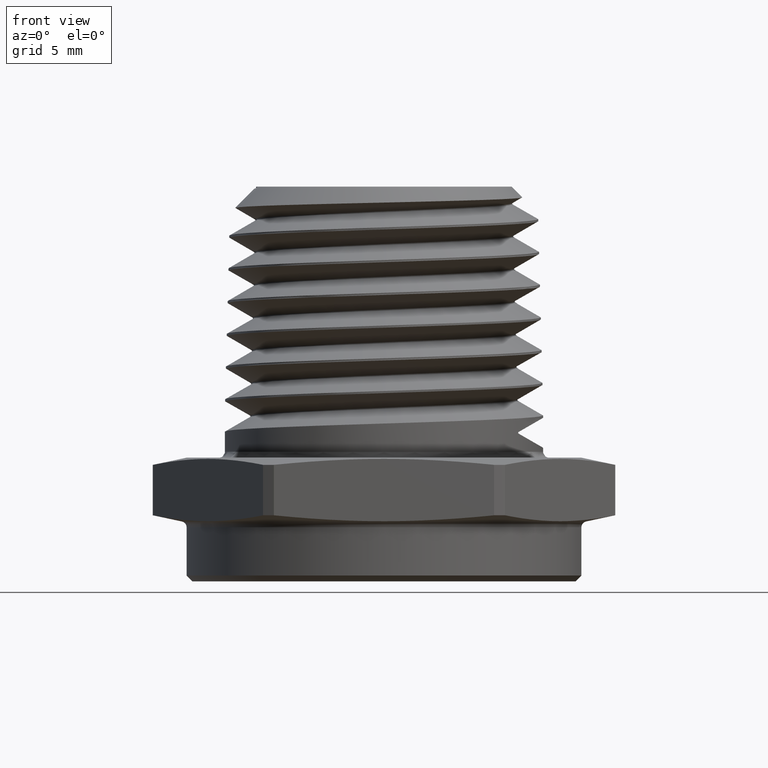
[diagram: clean part render]
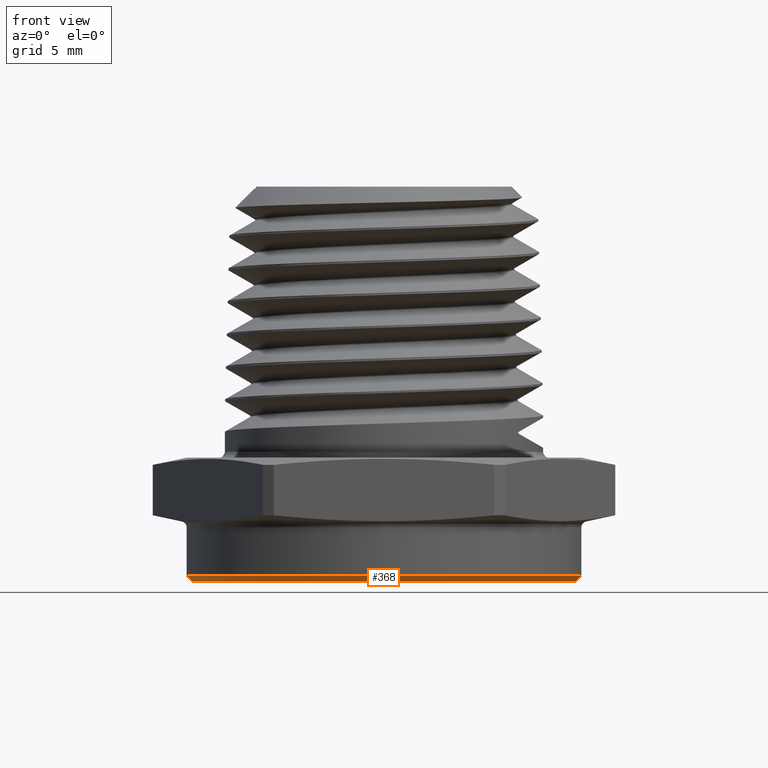
[diagram: same view with one face highlighted and labeled with its STEP entity id]
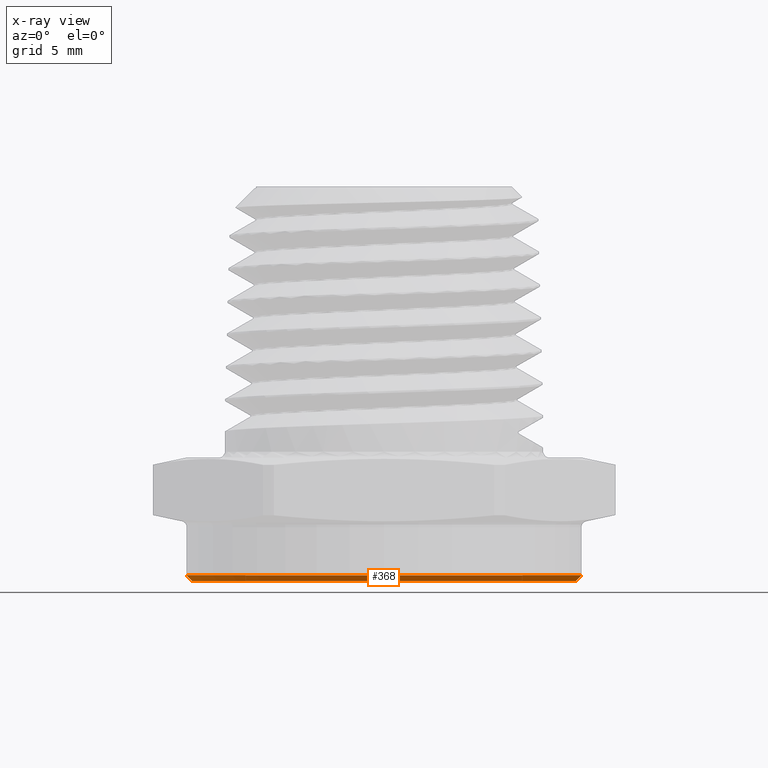
[diagram: x-ray of the same camera — body ghosted, the highlighted face saturated]
A machine part, front view. The second image highlights one B-rep face of the part: STEP entity #368.
The next image is the same camera in x-ray: the body ghosted, the highlighted face saturated — about 0% of this face is hidden behind the body in this view.
In plain terms, the highlighted conical surface has half-angle 45 deg.
Its self-contained STEP definition (entity closure, byte-faithful):
#368 = ADVANCED_FACE ( 'NONE', ( #1009 ), #1013, .T. ) ;
#487 = EDGE_CURVE ( 'NONE', #875, #874, #1108, .T. ) ;
#489 = EDGE_CURVE ( 'NONE', #862, #867, #1109, .T. ) ;
#542 = EDGE_CURVE ( 'NONE', #867, #875, #1179, .T. ) ;
#544 = EDGE_CURVE ( 'NONE', #862, #874, #1180, .T. ) ;
#619 = AXIS2_PLACEMENT_3D ( 'NONE', #5116, #5117, #5114 ) ;
#681 = AXIS2_PLACEMENT_3D ( 'NONE', #3032, #3033, #3034 ) ;
#683 = AXIS2_PLACEMENT_3D ( 'NONE', #3038, #3039, #3040 ) ;
#719 = EDGE_LOOP ( 'NONE', ( #4699, #4709, #4704, #4710 ) ) ;
#862 = VERTEX_POINT ( 'NONE', #4114 ) ;
#867 = VERTEX_POINT ( 'NONE', #4143 ) ;
#874 = VERTEX_POINT ( 'NONE', #4148 ) ;
#875 = VERTEX_POINT ( 'NONE', #4149 ) ;
#1009 = FACE_OUTER_BOUND ( 'NONE', #719, .T. ) ;
#1013 = CONICAL_SURFACE ( 'NONE', #619, 0.3249999999999999600, 0.7853981633974380600 ) ;
#1108 = CIRCLE ( 'NONE', #681, 0.3350000000000000200 ) ;
#1109 = CIRCLE ( 'NONE', #683, 0.3249999999999999600 ) ;
#1179 = LINE ( 'NONE', #3711, #1181 ) ;
#1180 = LINE ( 'NONE', #3720, #1184 ) ;
#1181 = VECTOR ( 'NONE', #3712, 39.37007874015748100 ) ;
#1184 = VECTOR ( 'NONE', #3719, 39.37007874015748100 ) ;
#3032 = CARTESIAN_POINT ( 'NONE',  ( 0.0000000000000000000, 0.0000000000000000000, -0.08999999999999970500 ) ) ;
#3033 = DIRECTION ( 'NONE',  ( 0.0000000000000000000, 0.0000000000000000000, 1.000000000000000000 ) ) ;
#3034 = DIRECTION ( 'NONE',  ( -1.000000000000000000, 0.0000000000000000000, 0.0000000000000000000 ) ) ;
#3038 = CARTESIAN_POINT ( 'NONE',  ( 0.0000000000000000000, 0.0000000000000000000, -0.1000000000000000100 ) ) ;
#3039 = DIRECTION ( 'NONE',  ( 0.0000000000000000000, 0.0000000000000000000, -1.000000000000000000 ) ) ;
#3040 = DIRECTION ( 'NONE',  ( -1.000000000000000000, 0.0000000000000000000, 0.0000000000000000000 ) ) ;
#3711 = CARTESIAN_POINT ( 'NONE',  ( -0.3249999999999999600, 3.980102097228897100E-017, -0.1000000000000000100 ) ) ;
#3712 = DIRECTION ( 'NONE',  ( -0.7071067811865402500, 8.659560562354844100E-017, 0.7071067811865547900 ) ) ;
#3719 = DIRECTION ( 'NONE',  ( 0.7071067811865402500, 0.0000000000000000000, 0.7071067811865547900 ) ) ;
#3720 = CARTESIAN_POINT ( 'NONE',  ( 0.3249999999999999600, 0.0000000000000000000, -0.1000000000000000100 ) ) ;
#4114 = CARTESIAN_POINT ( 'NONE',  ( 0.3249999999999999600, 0.0000000000000000000, -0.1000000000000000100 ) ) ;
#4143 = CARTESIAN_POINT ( 'NONE',  ( -0.3249999999999999600, 4.041334437186264600E-017, -0.1000000000000000100 ) ) ;
#4148 = CARTESIAN_POINT ( 'NONE',  ( 0.3350000000000000200, 0.0000000000000000000, -0.08999999999999970500 ) ) ;
#4149 = CARTESIAN_POINT ( 'NONE',  ( -0.3350000000000000200, 4.102566777143633400E-017, -0.08999999999999970500 ) ) ;
#4699 = ORIENTED_EDGE ( 'NONE', *, *, #542, .F. ) ;
#4704 = ORIENTED_EDGE ( 'NONE', *, *, #544, .T. ) ;
#4709 = ORIENTED_EDGE ( 'NONE', *, *, #489, .F. ) ;
#4710 = ORIENTED_EDGE ( 'NONE', *, *, #487, .F. ) ;
#5114 = DIRECTION ( 'NONE',  ( 1.000000000000000000, 0.0000000000000000000, 0.0000000000000000000 ) ) ;
#5116 = CARTESIAN_POINT ( 'NONE',  ( 0.0000000000000000000, 0.0000000000000000000, -0.1000000000000000100 ) ) ;
#5117 = DIRECTION ( 'NONE',  ( 0.0000000000000000000, 0.0000000000000000000, 1.000000000000000000 ) ) ;